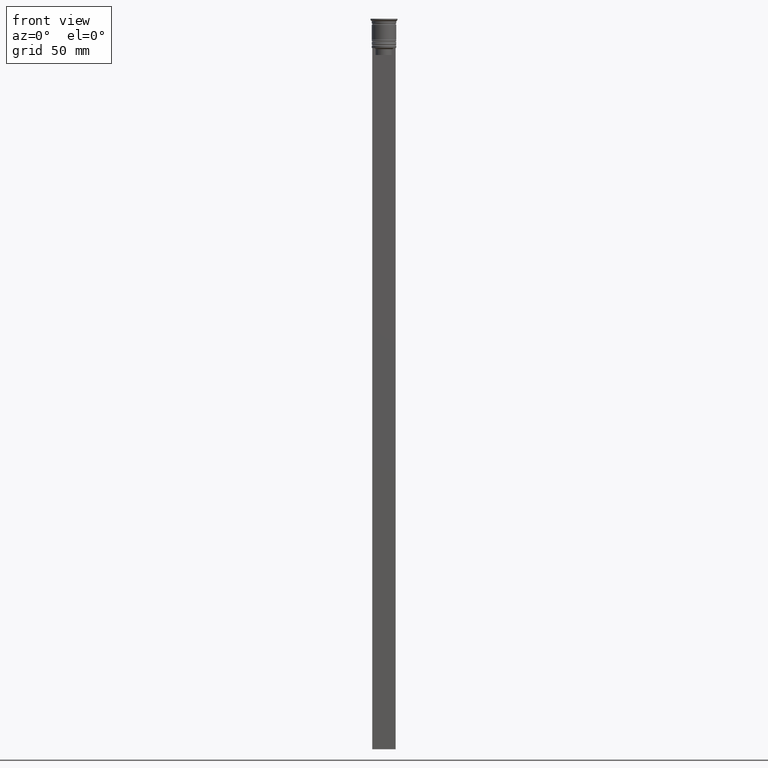
[diagram: clean part render]
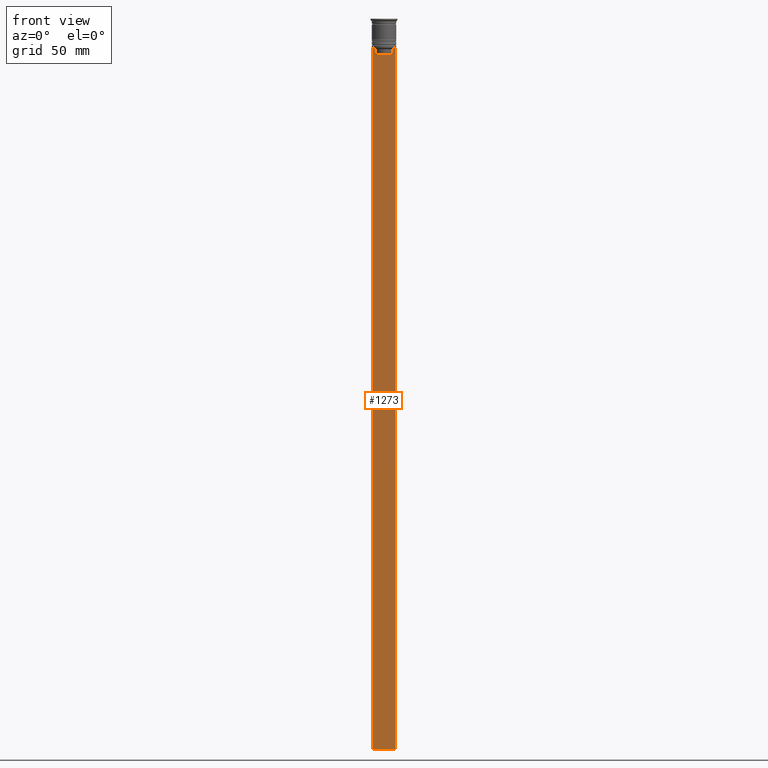
[diagram: same view with one face highlighted and labeled with its STEP entity id]
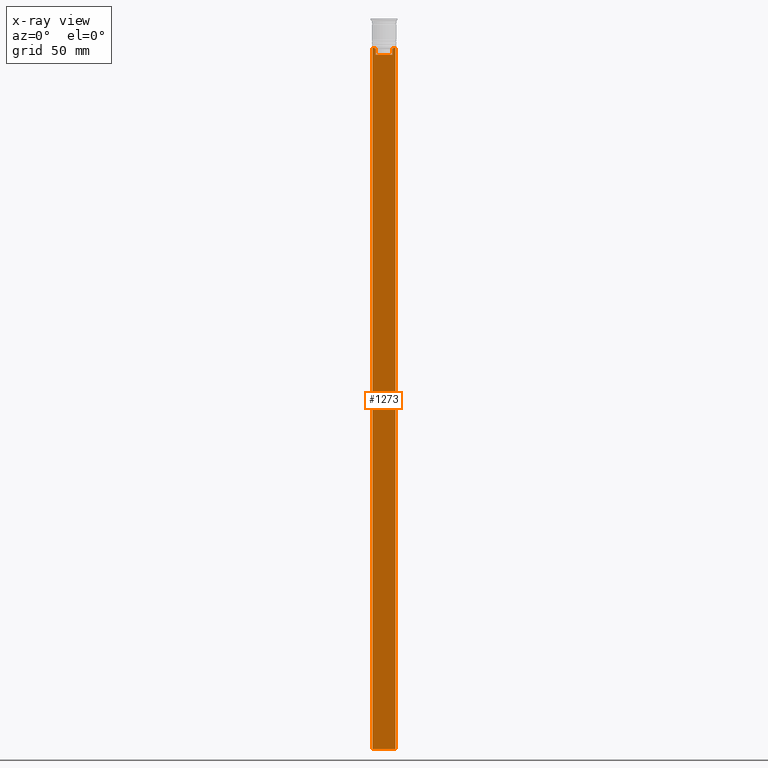
[diagram: x-ray of the same camera — body ghosted, the highlighted face saturated]
A machine part, front view. The second image highlights one B-rep face of the part: STEP entity #1273.
The next image is the same camera in x-ray: the body ghosted, the highlighted face saturated — about 0% of this face is hidden behind the body in this view.
In plain terms, the highlighted planar face has unit normal (0, -1, -0).
Its self-contained STEP definition (entity closure, byte-faithful):
#22 = EDGE_CURVE ( 'NONE', #514, #788, #1150, .T. ) ;
#41 = EDGE_CURVE ( 'NONE', #911, #2202, #59, .T. ) ;
#59 = B_SPLINE_CURVE_WITH_KNOTS ( 'NONE', 3,
 ( #114, #2065, #1384, #95 ),
 .UNSPECIFIED., .F., .F.,
 ( 4, 4 ),
 ( 0.007067514914986629433, 0.007777582239375527978 ),
 .UNSPECIFIED. ) ;
#66 = CARTESIAN_POINT ( 'NONE',  ( 3.951794168112528816, -0.5000000000000008882, -12.66675163073525745 ) ) ;
#88 = VECTOR ( 'NONE', #327, 1000.000000000000000 ) ;
#89 = VECTOR ( 'NONE', #895, 1000.000000000000000 ) ;
#95 = CARTESIAN_POINT ( 'NONE',  ( -3.615591237958188042, -0.5000000000000008882, -13.00000000000000178 ) ) ;
#114 = CARTESIAN_POINT ( 'NONE',  ( -4.119769411022908834, -0.5000000000000008882, -12.50000000000000000 ) ) ;
#152 = EDGE_CURVE ( 'NONE', #2202, #514, #982, .T. ) ;
#177 = ORIENTED_EDGE ( 'NONE', *, *, #1203, .F. ) ;
#189 = ORIENTED_EDGE ( 'NONE', *, *, #152, .F. ) ;
#194 = VECTOR ( 'NONE', #224, 1000.000000000000000 ) ;
#206 = CARTESIAN_POINT ( 'NONE',  ( 5.000000000000000000, -0.5000000000000008882, -312.5000000000000000 ) ) ;
#218 = ORIENTED_EDGE ( 'NONE', *, *, #1995, .F. ) ;
#224 = DIRECTION ( 'NONE',  ( 1.000000000000000000, 0.000000000000000000, 0.000000000000000000 ) ) ;
#251 = CARTESIAN_POINT ( 'NONE',  ( 4.119769411022908834, -0.5000000000000008882, -12.50000000000000000 ) ) ;
#257 = PLANE ( 'NONE',  #840 ) ;
#265 = CARTESIAN_POINT ( 'NONE',  ( 3.615591237958188042, -0.5000000000000008882, 0.000000000000000000 ) ) ;
#275 = LINE ( 'NONE', #623, #1674 ) ;
#282 = DIRECTION ( 'NONE',  ( 0.000000000000000000, -1.000000000000000000, -0.000000000000000000 ) ) ;
#327 = DIRECTION ( 'NONE',  ( 1.000000000000000000, 0.000000000000000000, 0.000000000000000000 ) ) ;
#336 = LINE ( 'NONE', #817, #1939 ) ;
#435 = CARTESIAN_POINT ( 'NONE',  ( 5.000000000000000000, -0.5000000000000008882, -2.450124378879110054 ) ) ;
#462 = CARTESIAN_POINT ( 'NONE',  ( 3.615591237958188042, -0.5000000000000008882, -13.00000000000000178 ) ) ;
#514 = VERTEX_POINT ( 'NONE', #830 ) ;
#537 = DIRECTION ( 'NONE',  ( -1.000000000000000000, 0.000000000000000000, 0.000000000000000000 ) ) ;
#561 = ORIENTED_EDGE ( 'NONE', *, *, #22, .F. ) ;
#571 = ORIENTED_EDGE ( 'NONE', *, *, #2037, .F. ) ;
#579 = CARTESIAN_POINT ( 'NONE',  ( 5.000000000000000000, -0.5000000000000008882, -312.5000000000000000 ) ) ;
#610 = VECTOR ( 'NONE', #1028, 1000.000000000000000 ) ;
#623 = CARTESIAN_POINT ( 'NONE',  ( 5.000000000000000000, -0.5000000000000008882, -12.50000000000000000 ) ) ;
#631 = CARTESIAN_POINT ( 'NONE',  ( 4.119769411022908834, -0.5000000000000008882, -12.50000000000000000 ) ) ;
#651 = ORIENTED_EDGE ( 'NONE', *, *, #41, .F. ) ;
#674 = CARTESIAN_POINT ( 'NONE',  ( 3.615591237958188042, -0.5000000000000008882, -13.00000000000000178 ) ) ;
#676 = CARTESIAN_POINT ( 'NONE',  ( -3.615591237958188042, -0.5000000000000008882, -13.00000000000000178 ) ) ;
#788 = VERTEX_POINT ( 'NONE', #1000 ) ;
#790 = CARTESIAN_POINT ( 'NONE',  ( 3.783746406711540278, -0.5000000000000008882, -12.83343003979123509 ) ) ;
#817 = CARTESIAN_POINT ( 'NONE',  ( 5.000000000000000000, -0.5000000000000008882, -2.450124378879110054 ) ) ;
#819 = VERTEX_POINT ( 'NONE', #1688 ) ;
#830 = CARTESIAN_POINT ( 'NONE',  ( -3.615591237958188486, -0.5000000000000008882, -15.50000000000000000 ) ) ;
#840 = AXIS2_PLACEMENT_3D ( 'NONE', #435, #282, #2099 ) ;
#895 = DIRECTION ( 'NONE',  ( 0.000000000000000000, 0.000000000000000000, -1.000000000000000000 ) ) ;
#910 = CARTESIAN_POINT ( 'NONE',  ( 5.000000000000000000, -0.5000000000000008882, -12.50000000000000000 ) ) ;
#911 = VERTEX_POINT ( 'NONE', #2241 ) ;
#939 = CARTESIAN_POINT ( 'NONE',  ( -4.999999999999999112, -0.5000000000000008882, -312.5000000000000000 ) ) ;
#958 = CARTESIAN_POINT ( 'NONE',  ( -4.999999999999999112, -0.5000000000000008882, -2.450124378879110054 ) ) ;
#972 = ORIENTED_EDGE ( 'NONE', *, *, #2187, .F. ) ;
#982 = LINE ( 'NONE', #1924, #610 ) ;
#992 = DIRECTION ( 'NONE',  ( -0.000000000000000000, -0.000000000000000000, 1.000000000000000000 ) ) ;
#1000 = CARTESIAN_POINT ( 'NONE',  ( 3.615591237958188486, -0.5000000000000008882, -15.50000000000000000 ) ) ;
#1005 = VERTEX_POINT ( 'NONE', #674 ) ;
#1028 = DIRECTION ( 'NONE',  ( 0.000000000000000000, 0.000000000000000000, -1.000000000000000000 ) ) ;
#1043 = EDGE_CURVE ( 'NONE', #1615, #1090, #336, .T. ) ;
#1060 = DIRECTION ( 'NONE',  ( 0.000000000000000000, 0.000000000000000000, -1.000000000000000000 ) ) ;
#1090 = VERTEX_POINT ( 'NONE', #579 ) ;
#1093 = EDGE_CURVE ( 'NONE', #819, #1933, #1300, .T. ) ;
#1150 = LINE ( 'NONE', #1842, #194 ) ;
#1202 = ORIENTED_EDGE ( 'NONE', *, *, #1093, .T. ) ;
#1203 = EDGE_CURVE ( 'NONE', #788, #1005, #2074, .T. ) ;
#1273 = ADVANCED_FACE ( 'NONE', ( #1902 ), #257, .T. ) ;
#1279 = EDGE_LOOP ( 'NONE', ( #651, #2220, #1202, #218, #1532, #972, #571, #177, #561, #189 ) ) ;
#1300 = LINE ( 'NONE', #958, #89 ) ;
#1384 = CARTESIAN_POINT ( 'NONE',  ( -3.783746449387932476, -0.5000000000000008882, -12.83342999751715752 ) ) ;
#1408 = VECTOR ( 'NONE', #992, 1000.000000000000000 ) ;
#1525 = DIRECTION ( 'NONE',  ( 1.000000000000000000, 0.000000000000000000, 0.000000000000000000 ) ) ;
#1532 = ORIENTED_EDGE ( 'NONE', *, *, #1043, .F. ) ;
#1573 = CARTESIAN_POINT ( 'NONE',  ( 5.000000000000000000, -0.5000000000000008882, -12.50000000000000000 ) ) ;
#1615 = VERTEX_POINT ( 'NONE', #910 ) ;
#1627 = VECTOR ( 'NONE', #537, 1000.000000000000000 ) ;
#1674 = VECTOR ( 'NONE', #1525, 1000.000000000000000 ) ;
#1688 = CARTESIAN_POINT ( 'NONE',  ( -4.999999999999999112, -0.5000000000000008882, -12.50000000000000000 ) ) ;
#1842 = CARTESIAN_POINT ( 'NONE',  ( 0.000000000000000000, -0.5000000000000008882, -15.50000000000000000 ) ) ;
#1876 = B_SPLINE_CURVE_WITH_KNOTS ( 'NONE', 3,
 ( #462, #790, #66, #251 ),
 .UNSPECIFIED., .F., .F.,
 ( 4, 4 ),
 ( 0.01745179617248909451, 0.01816207215777257411 ),
 .UNSPECIFIED. ) ;
#1902 = FACE_OUTER_BOUND ( 'NONE', #1279, .T. ) ;
#1924 = CARTESIAN_POINT ( 'NONE',  ( -3.615591237958188042, -0.5000000000000008882, 0.000000000000000000 ) ) ;
#1933 = VERTEX_POINT ( 'NONE', #939 ) ;
#1939 = VECTOR ( 'NONE', #1060, 1000.000000000000000 ) ;
#1995 = EDGE_CURVE ( 'NONE', #1090, #1933, #2166, .T. ) ;
#2025 = EDGE_CURVE ( 'NONE', #819, #911, #275, .T. ) ;
#2037 = EDGE_CURVE ( 'NONE', #1005, #2059, #1876, .T. ) ;
#2059 = VERTEX_POINT ( 'NONE', #631 ) ;
#2065 = CARTESIAN_POINT ( 'NONE',  ( -3.951794205566887985, -0.5000000000000008882, -12.66675159355373914 ) ) ;
#2074 = LINE ( 'NONE', #265, #1408 ) ;
#2099 = DIRECTION ( 'NONE',  ( 0.000000000000000000, 0.000000000000000000, -1.000000000000000000 ) ) ;
#2166 = LINE ( 'NONE', #206, #1627 ) ;
#2187 = EDGE_CURVE ( 'NONE', #2059, #1615, #2300, .T. ) ;
#2202 = VERTEX_POINT ( 'NONE', #676 ) ;
#2220 = ORIENTED_EDGE ( 'NONE', *, *, #2025, .F. ) ;
#2241 = CARTESIAN_POINT ( 'NONE',  ( -4.119769411022908834, -0.5000000000000008882, -12.50000000000000000 ) ) ;
#2300 = LINE ( 'NONE', #1573, #88 ) ;